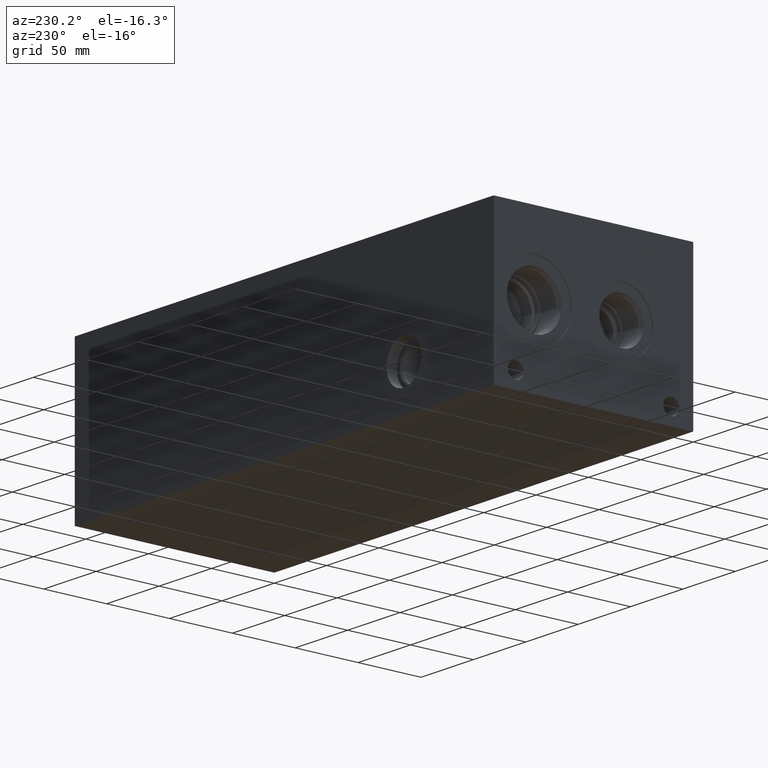
[diagram: clean part render]
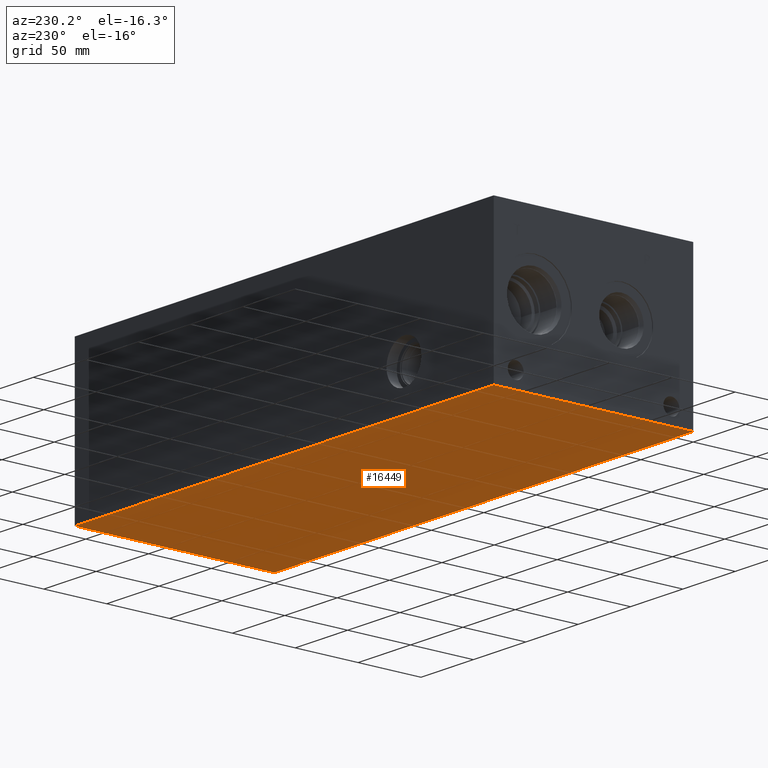
[diagram: same view with one face highlighted and labeled with its STEP entity id]
A machine part, auxiliary view. The second image highlights one B-rep face of the part: STEP entity #16449.
In plain terms, the highlighted planar face has unit normal (0, 0, 1).
Its self-contained STEP definition (entity closure, byte-faithful):
#2395=FACE_OUTER_BOUND('',#3418,.T.);
#3418=EDGE_LOOP('',(#14624,#14625,#14626,#14627));
#3452=LINE('',#21412,#4829);
#4464=LINE('',#26830,#5841);
#4523=LINE('',#27102,#5900);
#4794=LINE('',#28715,#6171);
#4829=VECTOR('',#17691,10.);
#5841=VECTOR('',#19373,10.);
#5900=VECTOR('',#19486,10.);
#6171=VECTOR('',#21331,10.);
#6195=VERTEX_POINT('',#21410);
#6196=VERTEX_POINT('',#21411);
#7147=VERTEX_POINT('',#26829);
#7205=VERTEX_POINT('',#27101);
#7794=EDGE_CURVE('',#6195,#6196,#3452,.T.);
#9212=EDGE_CURVE('',#6196,#7147,#4464,.T.);
#9295=EDGE_CURVE('',#7205,#6195,#4523,.T.);
#10048=EDGE_CURVE('',#7147,#7205,#4794,.T.);
#14624=ORIENTED_EDGE('',*,*,#7794,.F.);
#14625=ORIENTED_EDGE('',*,*,#9295,.F.);
#14626=ORIENTED_EDGE('',*,*,#10048,.F.);
#14627=ORIENTED_EDGE('',*,*,#9212,.F.);
#15043=PLANE('',#17629);
#16449=ADVANCED_FACE('',(#2395),#15043,.F.);
#17629=AXIS2_PLACEMENT_3D('',#28720,#21339,#21340);
#17691=DIRECTION('',(1.,0.,0.));
#19373=DIRECTION('',(0.,1.,0.));
#19486=DIRECTION('',(0.,-1.,0.));
#21331=DIRECTION('',(-1.,0.,0.));
#21339=DIRECTION('center_axis',(0.,0.,1.));
#21340=DIRECTION('ref_axis',(1.,0.,0.));
#21410=CARTESIAN_POINT('',(0.,0.,0.));
#21411=CARTESIAN_POINT('',(400.05,0.,0.));
#21412=CARTESIAN_POINT('',(0.,0.,0.));
#26829=CARTESIAN_POINT('',(400.05,158.75,0.));
#26830=CARTESIAN_POINT('',(400.05,0.,0.));
#27101=CARTESIAN_POINT('',(0.,158.75,0.));
#27102=CARTESIAN_POINT('',(0.,158.75,0.));
#28715=CARTESIAN_POINT('',(400.05,158.75,0.));
#28720=CARTESIAN_POINT('Origin',(200.025,79.375,0.));